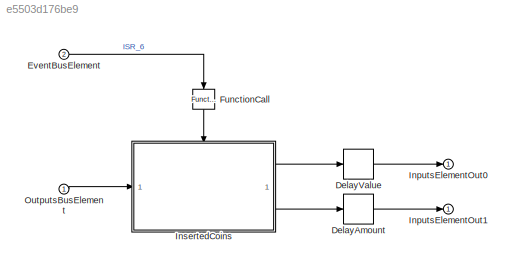
MODEL slx_e5503d176be9
KIND model
CONFIG AbsTol = auto
CONFIG EnableMultiTasking = off
CONFIG FixedStep = SAMPLING_TIME
CONFIG MaxStep = auto
CONFIG MinStep = auto
CONFIG RelTol = 1e-3
CONFIG SampleTimeConstraint = Unconstrained
CONFIG SolverName = FixedStepAuto
CONFIG StartTime = 0.0
CONFIG StopTime = Inf
BLOCK [Delay] DelayAmount
  DelayLength = 1
  InputPortMap = u0
BLOCK [Delay] DelayValue
  DelayLength = 1
  InputPortMap = u0
  NameLocation = top
BLOCK [Inport] EventBusElement
  Port = 2
BLOCK [Reference] FunctionCall  REF=simulink/Ports &
Subsystems/Function-Call
Generator
  NameLocation = right
  SourceBlock = simulink/Ports &\nSubsystems/Function-Call\nGenerator
  SourceType = Function-Call Generator
BLOCK [Outport] InputsElementOut0
BLOCK [Outport] InputsElementOut1
BLOCK [ModelReference] InsertedCoins
  ModelNameDialog = InsertedCoins.slx
  ModelReferenceVersion = 11.4
  TriggerPortName = call
  TriggerPortStatesWhenEnabling = held
  TriggerPortTriggerType = function-call
BLOCK [Inport] OutputsBusElement
LINE DelayAmount:1 -> InputsElementOut1:1
LINE DelayValue:1 -> InputsElementOut0:1
LINE EventBusElement:1 -> FunctionCall:1
LINE FunctionCall:1 -> InsertedCoins:trigger
LINE InsertedCoins:1 -> DelayValue:1
LINE InsertedCoins:2 -> DelayAmount:1
LINE OutputsBusElement:1 -> InsertedCoins:1
